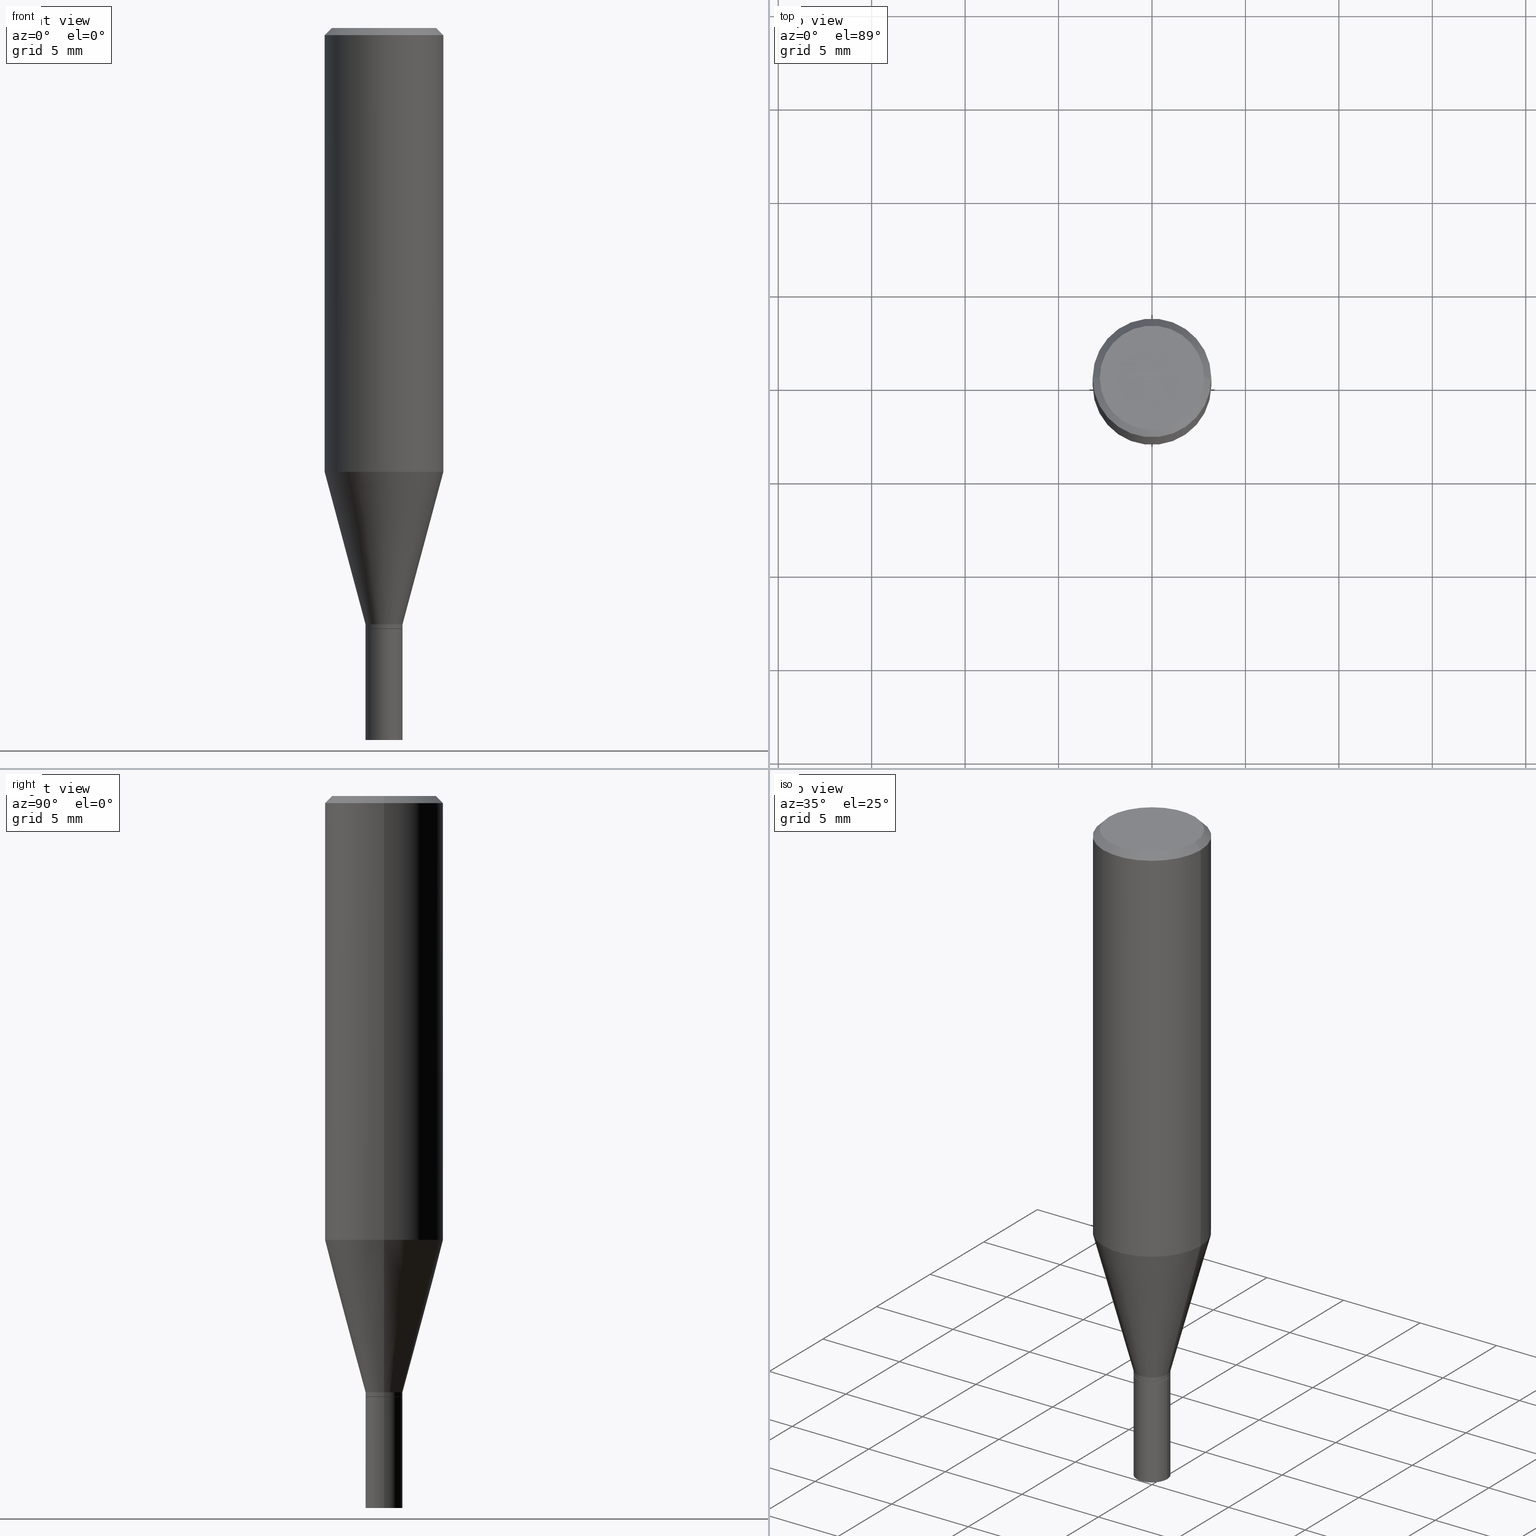
[diagram: canonical four-view strip — front | top / right | iso, engineering-drawing reading convention]
A machine part, canonical four-view strip (front | top / right | iso — engineering-drawing reading convention). The complete STEP part file that produces these views, byte-faithful:
ISO-10303-21;
HEADER;
FILE_DESCRIPTION (( 'STEP AP203' ),
    '1' );
FILE_NAME ('05292.STEP',
    '2024-03-14T18:05:13',
    ( '' ),
    ( '' ),
    'SwSTEP 2.0',
    'SolidWorks 2023',
    '' );
FILE_SCHEMA (( 'CONFIG_CONTROL_DESIGN' ));
ENDSEC;

DATA;
#1 = DIRECTION ( 'NONE',  ( 1.000000000000000000, -6.982962677686266711E-15, 0.000000000000000000 ) ) ;
#2 = LOCAL_TIME ( 14, 5, 13.00000000000000000, #310 ) ;
#3 = ADVANCED_FACE ( 'NONE', ( #195 ), #27, .T. ) ;
#4 = APPLICATION_PROTOCOL_DEFINITION ( 'international standard', 'config_control_design', 1994, #252 ) ;
#5 = CARTESIAN_POINT ( 'NONE',  ( -0.03905000000000000138, -4.551251753305752024E-15, -1.500000000000000222 ) ) ;
#6 = DIRECTION ( 'NONE',  ( -2.445468806185136597E-29, 3.491481338843145583E-15, 1.000000000000000000 ) ) ;
#7 = MECHANICAL_CONTEXT ( 'NONE', #242, 'mechanical' ) ;
#8 = CARTESIAN_POINT ( 'NONE',  ( -0.03904999999999992505, 2.774669383143185900E-16, -1.920844152744536784E-30 ) ) ;
#9 = PERSON_AND_ORGANIZATION ( #257, #280 ) ;
#10 = VERTEX_POINT ( 'NONE', #16 ) ;
#11 = AXIS2_PLACEMENT_3D ( 'NONE', #381, #31, #238 ) ;
#12 = AXIS2_PLACEMENT_3D ( 'NONE', #102, #458, #74 ) ;
#13 = ORIENTED_EDGE ( 'NONE', *, *, #270, .F. ) ;
#14 = ORIENTED_EDGE ( 'NONE', *, *, #346, .T. ) ;
#15 = DIRECTION ( 'NONE',  ( -2.445468806185136877E-29, 3.491481338843145188E-15, 1.000000000000000000 ) ) ;
#16 = CARTESIAN_POINT ( 'NONE',  ( -0.03904999999999992505, -3.242497054963153757E-15, -1.256000000000000227 ) ) ;
#17 = LINE ( 'NONE', #225, #313 ) ;
#18 = ORIENTED_EDGE ( 'NONE', *, *, #276, .T. ) ;
#19 = DIRECTION ( 'NONE',  ( -2.445468806185136597E-29, 3.491481338843145583E-15, 1.000000000000000000 ) ) ;
#20 = ADVANCED_FACE ( 'NONE', ( #158 ), #137, .T. ) ;
#21 = VERTEX_POINT ( 'NONE', #78 ) ;
#22 = AXIS2_PLACEMENT_3D ( 'NONE', #402, #295, #266 ) ;
#23 = AXIS2_PLACEMENT_3D ( 'NONE', #414, #90, #223 ) ;
#24 = LINE ( 'NONE', #135, #459 ) ;
#25 = VERTEX_POINT ( 'NONE', #409 ) ;
#26 = ORIENTED_EDGE ( 'NONE', *, *, #219, .T. ) ;
#27 = CONICAL_SURFACE ( 'NONE', #75, 0.03855000000000000093, 0.7853981633974739252 ) ;
#28 = PRODUCT_DEFINITION_FORMATION_WITH_SPECIFIED_SOURCE ( 'ANY', '', #447, .NOT_KNOWN. ) ;
#29 = EDGE_CURVE ( 'NONE', #292, #188, #339, .T. ) ;
#30 = PERSON_AND_ORGANIZATION_ROLE ( 'design_supplier' ) ;
#31 = DIRECTION ( 'NONE',  ( -2.445468806185136597E-29, 3.491481338843145583E-15, 1.000000000000000000 ) ) ;
#32 = FACE_OUTER_BOUND ( 'NONE', #331, .T. ) ;
#33 = EDGE_CURVE ( 'NONE', #37, #307, #115, .T. ) ;
#34 = ORIENTED_EDGE ( 'NONE', *, *, #453, .T. ) ;
#35 = AXIS2_PLACEMENT_3D ( 'NONE', #431, #108, #325 ) ;
#36 = DIRECTION ( 'NONE',  ( -2.445468806185136877E-29, 3.491481338843145188E-15, 1.000000000000000000 ) ) ;
#37 = VERTEX_POINT ( 'NONE', #93 ) ;
#38 = LINE ( 'NONE', #253, #215 ) ;
#39 = ADVANCED_FACE ( 'NONE', ( #162 ), #96, .F. ) ;
#40 = PLANE ( 'NONE',  #411 ) ;
#41 = DIRECTION ( 'NONE',  ( 1.000000000000000000, -6.982962677686266711E-15, 4.876176775795935793E-29 ) ) ;
#42 = LINE ( 'NONE', #327, #53 ) ;
#43 = CIRCLE ( 'NONE', #370, 0.03904999999999992505 ) ;
#44 = CC_DESIGN_SECURITY_CLASSIFICATION ( #342, ( #28 ) ) ;
#45 = DATE_AND_TIME ( #361, #349 ) ;
#46 = DIRECTION ( 'NONE',  ( 0.7071067811865365815, -7.319954787623219758E-15, -0.7071067811865584529 ) ) ;
#47 = ORIENTED_EDGE ( 'NONE', *, *, #99, .T. ) ;
#48 = LINE ( 'NONE', #298, #401 ) ;
#49 = EDGE_CURVE ( 'NONE', #21, #120, #400, .T. ) ;
#50 = ORIENTED_EDGE ( 'NONE', *, *, #203, .T. ) ;
#51 =( NAMED_UNIT ( * ) SI_UNIT ( $, .STERADIAN. ) SOLID_ANGLE_UNIT ( ) );
#52 = CARTESIAN_POINT ( 'NONE',  ( 0.03905000000000000138, -2.726846925636487182E-16, 1.904147030948312851E-30 ) ) ;
#53 = VECTOR ( 'NONE', #291, 39.37007874015748143 ) ;
#54 = ORIENTED_EDGE ( 'NONE', *, *, #371, .F. ) ;
#55 =( CONVERSION_BASED_UNIT ( 'INCH', #227 ) LENGTH_UNIT ( ) NAMED_UNIT ( #272 ) );
#56 = VERTEX_POINT ( 'NONE', #379 ) ;
#57 = DIRECTION ( 'NONE',  ( 1.000000000000000000, -6.982962677686266711E-15, 0.000000000000000000 ) ) ;
#58 = ORIENTED_EDGE ( 'NONE', *, *, #49, .F. ) ;
#59 = EDGE_LOOP ( 'NONE', ( #187, #47, #231, #13 ) ) ;
#60 = APPROVAL_PERSON_ORGANIZATION ( #9, #245, #130 ) ;
#61 = CYLINDRICAL_SURFACE ( 'NONE', #69, 0.03904999999999992505 ) ;
#62 = FACE_OUTER_BOUND ( 'NONE', #161, .T. ) ;
#63 = CARTESIAN_POINT ( 'NONE',  ( 0.000000000000000000, 0.000000000000000000, 0.000000000000000000 ) ) ;
#64 = AXIS2_PLACEMENT_3D ( 'NONE', #324, #460, #248 ) ;
#65 = CARTESIAN_POINT ( 'NONE',  ( -0.03855000000000000093, -4.146301150339903732E-15, -1.266000000000000014 ) ) ;
#66 = DIRECTION ( 'NONE',  ( -2.445468806185136597E-29, 3.491481338843145583E-15, 1.000000000000000000 ) ) ;
#67 = PERSON_AND_ORGANIZATION_ROLE ( 'classification_officer' ) ;
#68 = DIRECTION ( 'NONE',  ( -2.445468806185136597E-29, 3.491481338843145583E-15, 1.000000000000000000 ) ) ;
#69 = AXIS2_PLACEMENT_3D ( 'NONE', #418, #209, #97 ) ;
#70 = DIRECTION ( 'NONE',  ( -0.7071067811865365815, 2.468850131082142676E-15, -0.7071067811865584529 ) ) ;
#71 = ADVANCED_FACE ( 'NONE', ( #62 ), #456, .F. ) ;
#72 = APPROVAL ( #416, 'UNSPECIFIED' ) ;
#73 = DIRECTION ( 'NONE',  ( 2.445468806185136597E-29, -3.491481338843145583E-15, -1.000000000000000000 ) ) ;
#74 = DIRECTION ( 'NONE',  ( 1.000000000000000000, -6.982962677686254878E-15, 0.000000000000000000 ) ) ;
#75 = AXIS2_PLACEMENT_3D ( 'NONE', #89, #335, #81 ) ;
#76 = DIRECTION ( 'NONE',  ( -1.000000000000000000, 6.982962677686266711E-15, 0.000000000000000000 ) ) ;
#77 = CC_DESIGN_APPROVAL ( #124, ( #28 ) ) ;
#78 = CARTESIAN_POINT ( 'NONE',  ( -0.03905000000000000138, -4.551251753305752024E-15, -1.266000000000000014 ) ) ;
#79 = EDGE_CURVE ( 'NONE', #159, #461, #249, .T. ) ;
#80 = CALENDAR_DATE ( 2024, 14, 3 ) ;
#81 = DIRECTION ( 'NONE',  ( 1.000000000000000000, -6.982962677686253300E-15, 0.000000000000000000 ) ) ;
#82 = ORIENTED_EDGE ( 'NONE', *, *, #383, .F. ) ;
#83 =( LENGTH_UNIT ( ) NAMED_UNIT ( * ) SI_UNIT ( $, .METRE. ) );
#84 = APPROVAL_PERSON_ORGANIZATION ( #271, #124, #110 ) ;
#85 = CARTESIAN_POINT ( 'NONE',  ( 3.094740774227290865E-29, -4.418469634306001449E-15, -1.265500000000000291 ) ) ;
#86 = ADVANCED_FACE ( 'NONE', ( #201 ), #354, .T. ) ;
#87 = EDGE_CURVE ( 'NONE', #25, #229, #24, .T. ) ;
#88 = CARTESIAN_POINT ( 'NONE',  ( 0.000000000000000000, 0.000000000000000000, 0.000000000000000000 ) ) ;
#89 = CARTESIAN_POINT ( 'NONE',  ( 3.095963508630383106E-29, -4.420215374975422163E-15, -1.266000000000000014 ) ) ;
#90 = DIRECTION ( 'NONE',  ( 0.000000000000000000, 0.000000000000000000, 1.000000000000000000 ) ) ;
#91 = FACE_OUTER_BOUND ( 'NONE', #353, .T. ) ;
#92 = APPLICATION_PROTOCOL_DEFINITION ( 'international standard', 'config_control_design', 1994, #242 ) ;
#93 = CARTESIAN_POINT ( 'NONE',  ( 0.03855000000000000093, -4.689408586200227480E-15, -1.266000000000000014 ) ) ;
#94 = AXIS2_PLACEMENT_3D ( 'NONE', #439, #278, #274 ) ;
#95 = CC_DESIGN_APPROVAL ( #245, ( #173 ) ) ;
#96 = PLANE ( 'NONE',  #375 ) ;
#97 = DIRECTION ( 'NONE',  ( 1.000000000000000000, -6.982962677686265922E-15, 4.876176775795935793E-29 ) ) ;
#98 = DIRECTION ( 'NONE',  ( 0.2588190451025213501, 1.565188264969621968E-15, 0.9659258262890682012 ) ) ;
#99 = EDGE_CURVE ( 'NONE', #307, #37, #133, .T. ) ;
#100 = LINE ( 'NONE', #387, #403 ) ;
#101 = DIRECTION ( 'NONE',  ( -1.000000000000000000, 6.982962677686265922E-15, -4.876176775795935793E-29 ) ) ;
#102 = CARTESIAN_POINT ( 'NONE',  ( 3.094740774227290865E-29, -4.418469634306001449E-15, -1.265500000000000291 ) ) ;
#103 = ORIENTED_EDGE ( 'NONE', *, *, #317, .T. ) ;
#104 = AXIS2_PLACEMENT_3D ( 'NONE', #63, #449, #131 ) ;
#105 = CIRCLE ( 'NONE', #12, 0.03904999999999992505 ) ;
#106 = LINE ( 'NONE', #8, #164 ) ;
#107 = EDGE_CURVE ( 'NONE', #307, #188, #386, .T. ) ;
#108 = DIRECTION ( 'NONE',  ( -2.445468806185136597E-29, 3.491481338843145583E-15, 1.000000000000000000 ) ) ;
#109 = CARTESIAN_POINT ( 'NONE',  ( 0.000000000000000000, 0.000000000000000000, 0.000000000000000000 ) ) ;
#110 = APPROVAL_ROLE ( '' ) ;
#111 = ORIENTED_EDGE ( 'NONE', *, *, #317, .F. ) ;
#112 = CARTESIAN_POINT ( 'NONE',  ( 3.668203209277705088E-31, -5.237222008264718399E-17, -0.01499999999999999944 ) ) ;
#113 = ORIENTED_EDGE ( 'NONE', *, *, #281, .F. ) ;
#114 = ADVANCED_FACE ( 'NONE', ( #91 ), #61, .T. ) ;
#115 = CIRCLE ( 'NONE', #94, 0.03855000000000000093 ) ;
#116 = CONICAL_SURFACE ( 'NONE', #452, 0.1250000000000000000, 0.7853981633974328469 ) ;
#117 = FACE_OUTER_BOUND ( 'NONE', #436, .T. ) ;
#118 = PERSON_AND_ORGANIZATION_ROLE ( 'design_owner' ) ;
#119 = EDGE_LOOP ( 'NONE', ( #442, #230, #172, #464 ) ) ;
#120 = VERTEX_POINT ( 'NONE', #351 ) ;
#121 = ORIENTED_EDGE ( 'NONE', *, *, #281, .T. ) ;
#122 = CARTESIAN_POINT ( 'NONE',  ( 3.095963508630383106E-29, -4.420215374975422163E-15, -1.266000000000000014 ) ) ;
#123 = ADVANCED_FACE ( 'NONE', ( #382 ), #345, .T. ) ;
#124 = APPROVAL ( #233, 'UNSPECIFIED' ) ;
#125 = ORIENTED_EDGE ( 'NONE', *, *, #346, .F. ) ;
#126 = ORIENTED_EDGE ( 'NONE', *, *, #305, .T. ) ;
#127 = DIRECTION ( 'NONE',  ( -2.445468806185136877E-29, 3.491481338843145188E-15, 1.000000000000000000 ) ) ;
#128 = VERTEX_POINT ( 'NONE', #163 ) ;
#129 = CARTESIAN_POINT ( 'NONE',  ( 3.071508820568532122E-29, -4.385300561586992092E-15, -1.256000000000000227 ) ) ;
#130 = APPROVAL_ROLE ( '' ) ;
#131 = DIRECTION ( 'NONE',  ( 1.000000000000000000, -6.982962677686266711E-15, 4.876176775795935793E-29 ) ) ;
#132 = EDGE_CURVE ( 'NONE', #362, #229, #312, .T. ) ;
#133 = CIRCLE ( 'NONE', #153, 0.03855000000000000093 ) ;
#134 = LOCAL_TIME ( 14, 5, 13.00000000000000000, #377 ) ;
#135 = CARTESIAN_POINT ( 'NONE',  ( 0.03904999999999992505, -4.657985254150639627E-15, -1.256000000000000227 ) ) ;
#136 = CARTESIAN_POINT ( 'NONE',  ( 0.1100000000000000006, -8.322946247794777961E-16, 4.589658644116375565E-16 ) ) ;
#137 = CONICAL_SURFACE ( 'NONE', #22, 0.03855000000000000093, 0.7853981633974739252 ) ;
#138 = AXIS2_PLACEMENT_3D ( 'NONE', #156, #6, #261 ) ;
#139 = APPROVAL_PERSON_ORGANIZATION ( #455, #72, #388 ) ;
#140 = DIRECTION ( 'NONE',  ( -1.000000000000000000, 6.982962677686266711E-15, 0.000000000000000000 ) ) ;
#141 = PLANE ( 'NONE',  #376 ) ;
#142 = VERTEX_POINT ( 'NONE', #136 ) ;
#143 = DIRECTION ( 'NONE',  ( -2.445468806185136597E-29, 3.491481338843145583E-15, 1.000000000000000000 ) ) ;
#144 = CARTESIAN_POINT ( 'NONE',  ( 0.000000000000000000, 0.000000000000000000, 0.000000000000000000 ) ) ;
#145 = AXIS2_PLACEMENT_3D ( 'NONE', #246, #73, #140 ) ;
#146 = AXIS2_PLACEMENT_3D ( 'NONE', #412, #148, #302 ) ;
#147 = FACE_OUTER_BOUND ( 'NONE', #226, .T. ) ;
#148 = DIRECTION ( 'NONE',  ( -2.445468806185136597E-29, 3.491481338843145583E-15, 1.000000000000000000 ) ) ;
#149 = PERSON_AND_ORGANIZATION ( #257, #280 ) ;
#150 = ADVANCED_FACE ( 'NONE', ( #147 ), #288, .T. ) ;
#151 = CYLINDRICAL_SURFACE ( 'NONE', #385, 0.03904999999999992505 ) ;
#152 = DIRECTION ( 'NONE',  ( 1.000000000000000000, -6.982962677686254878E-15, 0.000000000000000000 ) ) ;
#153 = AXIS2_PLACEMENT_3D ( 'NONE', #240, #277, #309 ) ;
#154 = LINE ( 'NONE', #52, #250 ) ;
#155 = VERTEX_POINT ( 'NONE', #283 ) ;
#156 = CARTESIAN_POINT ( 'NONE',  ( 3.668203209277705088E-31, -5.237222008264718399E-17, -0.01499999999999999944 ) ) ;
#157 = ORIENTED_EDGE ( 'NONE', *, *, #364, .T. ) ;
#158 = FACE_OUTER_BOUND ( 'NONE', #59, .T. ) ;
#159 = VERTEX_POINT ( 'NONE', #217 ) ;
#160 = CIRCLE ( 'NONE', #146, 0.1100000000000000006 ) ;
#161 = EDGE_LOOP ( 'NONE', ( #157, #18 ) ) ;
#162 = FACE_OUTER_BOUND ( 'NONE', #191, .T. ) ;
#163 = CARTESIAN_POINT ( 'NONE',  ( -0.1100000000000000006, 7.943120045868136075E-16, 4.589658644116265124E-16 ) ) ;
#164 = VECTOR ( 'NONE', #127, 39.37007874015748143 ) ;
#165 = ADVANCED_FACE ( 'NONE', ( #424 ), #40, .F. ) ;
#166 = CARTESIAN_POINT ( 'NONE',  ( 0.1250000000000000000, -8.728703347107833388E-16, 6.095220969744919741E-30 ) ) ;
#167 = MANIFOLD_SOLID_BREP ( 'Body-Move/Copy2[1]', #189 ) ;
#168 = CARTESIAN_POINT ( 'NONE',  ( 0.1250000000000000278, -4.138209241064543323E-15, -0.9352302330894556315 ) ) ;
#169 = AXIS2_PLACEMENT_3D ( 'NONE', #318, #220, #323 ) ;
#170 = MANIFOLD_SOLID_BREP ( 'Body-Move/Copy2[2]', #341 ) ;
#171 = DIRECTION ( 'NONE',  ( -2.445468806185136877E-29, 3.491481338843145188E-15, 1.000000000000000000 ) ) ;
#172 = ORIENTED_EDGE ( 'NONE', *, *, #286, .T. ) ;
#173 = PRODUCT_DEFINITION ( 'UNKNOWN', '', #28, #359 ) ;
#174 = CARTESIAN_POINT ( 'NONE',  ( 3.095963508630383106E-29, -4.420215374975422163E-15, -1.266000000000000014 ) ) ;
#175 = PRODUCT_RELATED_PRODUCT_CATEGORY ( 'detail', '', ( #447 ) ) ;
#176 = DIRECTION ( 'NONE',  ( 1.000000000000000000, -6.982962677686266711E-15, 4.876176775795935232E-29 ) ) ;
#177 = ORIENTED_EDGE ( 'NONE', *, *, #350, .T. ) ;
#178 = UNCERTAINTY_MEASURE_WITH_UNIT (LENGTH_MEASURE( 1.000000000000000082E-05 ), #55, 'distance_accuracy_value', 'NONE');
#179 = CIRCLE ( 'NONE', #169, 0.1100000000000000006 ) ;
#180 = CARTESIAN_POINT ( 'NONE',  ( 3.071508820568532122E-29, -4.385300561586992092E-15, -1.256000000000000227 ) ) ;
#181 = ADVANCED_FACE ( 'NONE', ( #251 ), #199, .T. ) ;
#182 = APPROVAL_DATE_TIME ( #45, #124 ) ;
#183 = FACE_OUTER_BOUND ( 'NONE', #255, .T. ) ;
#184 = EDGE_LOOP ( 'NONE', ( #372, #367, #113, #239 ) ) ;
#185 = CARTESIAN_POINT ( 'NONE',  ( 0.000000000000000000, 0.000000000000000000, 0.000000000000000000 ) ) ;
#186 = DATE_AND_TIME ( #80, #296 ) ;
#187 = ORIENTED_EDGE ( 'NONE', *, *, #107, .F. ) ;
#188 = VERTEX_POINT ( 'NONE', #316 ) ;
#189 = CLOSED_SHELL ( 'NONE', ( #198, #39, #425, #165 ) ) ;
#190 = AXIS2_PLACEMENT_3D ( 'NONE', #144, #293, #41 ) ;
#191 = EDGE_LOOP ( 'NONE', ( #338, #196 ) ) ;
#192 =( NAMED_UNIT ( * ) PLANE_ANGLE_UNIT ( ) SI_UNIT ( $, .RADIAN. ) );
#193 = ORIENTED_EDGE ( 'NONE', *, *, #398, .T. ) ;
#194 = DIRECTION ( 'NONE',  ( -2.445468806185136597E-29, 3.491481338843145583E-15, 1.000000000000000000 ) ) ;
#195 = FACE_OUTER_BOUND ( 'NONE', #373, .T. ) ;
#196 = ORIENTED_EDGE ( 'NONE', *, *, #453, .F. ) ;
#197 = AXIS2_PLACEMENT_3D ( 'NONE', #85, #224, #152 ) ;
#198 = ADVANCED_FACE ( 'NONE', ( #395 ), #322, .T. ) ;
#199 = CONICAL_SURFACE ( 'NONE', #319, 0.03904999999999992505, 0.2617993877991500740 ) ;
#200 = DIRECTION ( 'NONE',  ( -1.000000000000000000, 6.982962677686265922E-15, -4.876176775795935793E-29 ) ) ;
#201 = FACE_OUTER_BOUND ( 'NONE', #405, .T. ) ;
#202 = DIRECTION ( 'NONE',  ( 1.000000000000000000, -6.982962677686266711E-15, 0.000000000000000000 ) ) ;
#203 = EDGE_CURVE ( 'NONE', #229, #56, #357, .T. ) ;
#204 = ADVANCED_FACE ( 'NONE', ( #32 ), #141, .F. ) ;
#205 = DIRECTION ( 'NONE',  ( -2.445468806185136597E-29, 3.491481338843145583E-15, 1.000000000000000000 ) ) ;
#206 = AXIS2_PLACEMENT_3D ( 'NONE', #129, #205, #347 ) ;
#207 = LOCAL_TIME ( 14, 5, 13.00000000000000000, #457 ) ;
#208 = DATE_TIME_ROLE ( 'classification_date' ) ;
#209 = DIRECTION ( 'NONE',  ( -2.445468806185136597E-29, 3.491481338843145583E-15, 1.000000000000000000 ) ) ;
#210 = SHAPE_DEFINITION_REPRESENTATION ( #300, #340 ) ;
#211 = DIRECTION ( 'NONE',  ( 1.000000000000000000, -6.982962677686266711E-15, 0.000000000000000000 ) ) ;
#212 = ORIENTED_EDGE ( 'NONE', *, *, #29, .T. ) ;
#213 = DIRECTION ( 'NONE',  ( 1.000000000000000000, -6.982962677686254878E-15, 0.000000000000000000 ) ) ;
#214 = CC_DESIGN_PERSON_AND_ORGANIZATION_ASSIGNMENT ( #423, #67, ( #342 ) ) ;
#215 = VECTOR ( 'NONE', #171, 39.37007874015748143 ) ;
#216 = CARTESIAN_POINT ( 'NONE',  ( -0.03904999999999992505, -4.107833623272672762E-15, -1.256000000000000227 ) ) ;
#217 = CARTESIAN_POINT ( 'NONE',  ( 0.03905000000000000138, -5.509906700828367289E-15, -1.500000000000000222 ) ) ;
#218 = EDGE_CURVE ( 'NONE', #10, #362, #285, .T. ) ;
#219 = EDGE_CURVE ( 'NONE', #292, #25, #38, .T. ) ;
#220 = DIRECTION ( 'NONE',  ( -2.445468806185136597E-29, 3.491481338843145583E-15, 1.000000000000000000 ) ) ;
#221 =( GEOMETRIC_REPRESENTATION_CONTEXT ( 3 ) GLOBAL_UNCERTAINTY_ASSIGNED_CONTEXT ( ( #178 ) ) GLOBAL_UNIT_ASSIGNED_CONTEXT ( ( #55, #192, #51 ) ) REPRESENTATION_CONTEXT ( 'NONE', 'WORKASPACE' ) );
#222 = CYLINDRICAL_SURFACE ( 'NONE', #430, 0.03905000000000000138 ) ;
#223 = DIRECTION ( 'NONE',  ( 1.000000000000000000, 0.000000000000000000, 0.000000000000000000 ) ) ;
#224 = DIRECTION ( 'NONE',  ( -2.445468806185136597E-29, 3.491481338843145583E-15, 1.000000000000000000 ) ) ;
#225 = CARTESIAN_POINT ( 'NONE',  ( 0.03855000000000000093, -4.689408586200227480E-15, -1.266000000000000014 ) ) ;
#226 = EDGE_LOOP ( 'NONE', ( #82, #369, #366, #177 ) ) ;
#227 = LENGTH_MEASURE_WITH_UNIT ( LENGTH_MEASURE( 0.02539999999999999897 ), #83 );
#228 = ORIENTED_EDGE ( 'NONE', *, *, #33, .F. ) ;
#229 = VERTEX_POINT ( 'NONE', #168 ) ;
#230 = ORIENTED_EDGE ( 'NONE', *, *, #383, .T. ) ;
#231 = ORIENTED_EDGE ( 'NONE', *, *, #397, .T. ) ;
#232 = ORIENTED_EDGE ( 'NONE', *, *, #270, .T. ) ;
#233 = APPROVAL_STATUS ( 'not_yet_approved' ) ;
#234 = APPROVAL_DATE_TIME ( #186, #245 ) ;
#235 = CIRCLE ( 'NONE', #138, 0.1250000000000000000 ) ;
#236 = CC_DESIGN_APPROVAL ( #72, ( #342 ) ) ;
#237 = DIRECTION ( 'NONE',  ( -2.438088387897960049E-29, 3.491481338843145188E-15, 1.000000000000000000 ) ) ;
#238 = DIRECTION ( 'NONE',  ( 1.000000000000000000, -6.982962677686266711E-15, 0.000000000000000000 ) ) ;
#239 = ORIENTED_EDGE ( 'NONE', *, *, #87, .F. ) ;
#240 = CARTESIAN_POINT ( 'NONE',  ( 3.095963508630383106E-29, -4.420215374975422163E-15, -1.266000000000000014 ) ) ;
#241 = CIRCLE ( 'NONE', #260, 0.1250000000000000000 ) ;
#242 = APPLICATION_CONTEXT ( 'configuration controlled 3d designs of mechanical parts and assemblies' ) ;
#243 = DIRECTION ( 'NONE',  ( -2.445468806185136877E-29, 3.491481338843145188E-15, 1.000000000000000000 ) ) ;
#244 = DATE_AND_TIME ( #420, #207 ) ;
#245 = APPROVAL ( #262, 'UNSPECIFIED' ) ;
#246 = CARTESIAN_POINT ( 'NONE',  ( 3.668203209277705088E-31, -5.237222008264718399E-17, -0.01499999999999999944 ) ) ;
#247 = FACE_OUTER_BOUND ( 'NONE', #259, .T. ) ;
#248 = DIRECTION ( 'NONE',  ( 1.000000000000000000, -6.982962677686266711E-15, 0.000000000000000000 ) ) ;
#249 = CIRCLE ( 'NONE', #334, 0.03905000000000000138 ) ;
#250 = VECTOR ( 'NONE', #15, 39.37007874015748143 ) ;
#251 = FACE_OUTER_BOUND ( 'NONE', #184, .T. ) ;
#252 = APPLICATION_CONTEXT ( 'configuration controlled 3d designs of mechanical parts and assemblies' ) ;
#253 = CARTESIAN_POINT ( 'NONE',  ( 0.03904999999999992505, -2.726846925636481759E-16, 1.904147030948309348E-30 ) ) ;
#254 = PERSON_AND_ORGANIZATION_ROLE ( 'creator' ) ;
#255 = EDGE_LOOP ( 'NONE', ( #111, #232, #26, #408 ) ) ;
#256 = CYLINDRICAL_SURFACE ( 'NONE', #190, 0.1250000000000000000 ) ;
#257 = PERSON ( 'UNSPECIFIED', 'UNSPECIFIED', 'UNSPECIFIED', ('UNSPECIFIED'), ('UNSPECIFIED'), ('UNSPECIFIED') ) ;
#258 = DIRECTION ( 'NONE',  ( 0.7071067811865656694, -2.468850131082446387E-15, 0.7071067811865294761 ) ) ;
#259 = EDGE_LOOP ( 'NONE', ( #121, #333, #284, #265 ) ) ;
#260 = AXIS2_PLACEMENT_3D ( 'NONE', #360, #390, #1 ) ;
#261 = DIRECTION ( 'NONE',  ( 1.000000000000000000, -6.982962677686266711E-15, 0.000000000000000000 ) ) ;
#262 = APPROVAL_STATUS ( 'not_yet_approved' ) ;
#263 = ORIENTED_EDGE ( 'NONE', *, *, #350, .F. ) ;
#264 = EDGE_CURVE ( 'NONE', #362, #155, #358, .T. ) ;
#265 = ORIENTED_EDGE ( 'NONE', *, *, #203, .F. ) ;
#266 = DIRECTION ( 'NONE',  ( 1.000000000000000000, -6.982962677686253300E-15, 0.000000000000000000 ) ) ;
#267 = VECTOR ( 'NONE', #393, 39.37007874015747433 ) ;
#268 = CARTESIAN_POINT ( 'NONE',  ( -0.1250000000000000278, -2.377160486653634357E-15, -0.9352302330894556315 ) ) ;
#269 = ORIENTED_EDGE ( 'NONE', *, *, #132, .F. ) ;
#270 = EDGE_CURVE ( 'NONE', #188, #292, #105, .T. ) ;
#271 = PERSON_AND_ORGANIZATION ( #257, #280 ) ;
#272 = DIMENSIONAL_EXPONENTS ( 1.000000000000000000, 0.000000000000000000, 0.000000000000000000, 0.000000000000000000, 0.000000000000000000, 0.000000000000000000, 0.000000000000000000 ) ;
#273 = AXIS2_PLACEMENT_3D ( 'NONE', #122, #329, #57 ) ;
#274 = DIRECTION ( 'NONE',  ( 1.000000000000000000, -6.982962677686253300E-15, 0.000000000000000000 ) ) ;
#275 = PERSON_AND_ORGANIZATION_ROLE ( 'creator' ) ;
#276 = EDGE_CURVE ( 'NONE', #142, #128, #179, .T. ) ;
#277 = DIRECTION ( 'NONE',  ( -2.445468806185136597E-29, 3.491481338843145583E-15, 1.000000000000000000 ) ) ;
#278 = DIRECTION ( 'NONE',  ( -2.445468806185136597E-29, 3.491481338843145583E-15, 1.000000000000000000 ) ) ;
#279 = CARTESIAN_POINT ( 'NONE',  ( 0.03904999999999992505, -4.691154326869648983E-15, -1.265500000000000291 ) ) ;
#280 = ORGANIZATION ( 'UNSPECIFIED', 'UNSPECIFIED', '' ) ;
#281 = EDGE_CURVE ( 'NONE', #229, #362, #438, .T. ) ;
#282 = PERSON_AND_ORGANIZATION ( #257, #280 ) ;
#283 = CARTESIAN_POINT ( 'NONE',  ( -0.1250000000000000000, -7.706771435180783978E-16, -0.01499999999999999944 ) ) ;
#284 = ORIENTED_EDGE ( 'NONE', *, *, #286, .F. ) ;
#285 = LINE ( 'NONE', #216, #267 ) ;
#286 = EDGE_CURVE ( 'NONE', #56, #155, #241, .T. ) ;
#287 = DIRECTION ( 'NONE',  ( 1.000000000000000000, -6.982962677686254878E-15, 0.000000000000000000 ) ) ;
#288 = CONICAL_SURFACE ( 'NONE', #145, 0.1250000000000000000, 0.7853981633974328469 ) ;
#289 = CIRCLE ( 'NONE', #421, 0.03904999999999992505 ) ;
#290 = DIRECTION ( 'NONE',  ( 2.438088387897960049E-29, -3.491481338843145188E-15, -1.000000000000000000 ) ) ;
#291 = DIRECTION ( 'NONE',  ( -2.445468806185136877E-29, 3.491481338843145188E-15, 1.000000000000000000 ) ) ;
#292 = VERTEX_POINT ( 'NONE', #279 ) ;
#293 = DIRECTION ( 'NONE',  ( -2.445468806185136597E-29, 3.491481338843145583E-15, 1.000000000000000000 ) ) ;
#294 = DIRECTION ( 'NONE',  ( -2.445468806185136597E-29, 3.491481338843145583E-15, 1.000000000000000000 ) ) ;
#295 = DIRECTION ( 'NONE',  ( -2.445468806185136597E-29, 3.491481338843145583E-15, 1.000000000000000000 ) ) ;
#296 = LOCAL_TIME ( 14, 5, 13.00000000000000000, #404 ) ;
#297 = CC_DESIGN_DATE_AND_TIME_ASSIGNMENT ( #446, #434, ( #173 ) ) ;
#298 = CARTESIAN_POINT ( 'NONE',  ( 0.1250000000000000000, -9.099344698040885245E-16, -0.01499999999999999944 ) ) ;
#299 = ORIENTED_EDGE ( 'NONE', *, *, #29, .F. ) ;
#300 = PRODUCT_DEFINITION_SHAPE ( 'NONE', 'NONE',  #173 ) ;
#301 = ORIENTED_EDGE ( 'NONE', *, *, #107, .T. ) ;
#302 = DIRECTION ( 'NONE',  ( 1.000000000000000000, -6.982962677686266711E-15, 4.852736867747365646E-29 ) ) ;
#303 = ORIENTED_EDGE ( 'NONE', *, *, #332, .T. ) ;
#304 = EDGE_CURVE ( 'NONE', #128, #155, #100, .T. ) ;
#305 = EDGE_CURVE ( 'NONE', #10, #25, #43, .T. ) ;
#306 = ORIENTED_EDGE ( 'NONE', *, *, #132, .T. ) ;
#307 = VERTEX_POINT ( 'NONE', #429 ) ;
#308 = CALENDAR_DATE ( 2024, 14, 3 ) ;
#309 = DIRECTION ( 'NONE',  ( 1.000000000000000000, -6.982962677686253300E-15, 0.000000000000000000 ) ) ;
#310 = COORDINATED_UNIVERSAL_TIME_OFFSET ( 5, 0, .BEHIND. ) ;
#311 = EDGE_LOOP ( 'NONE', ( #320, #193, #125, #413 ) ) ;
#312 = CIRCLE ( 'NONE', #348, 0.1250000000000000000 ) ;
#313 = VECTOR ( 'NONE', #258, 39.37007874015748143 ) ;
#314 = PERSON_AND_ORGANIZATION ( #257, #280 ) ;
#315 = CARTESIAN_POINT ( 'NONE',  ( 7.681258945454893776E-16, 0.1100000000000000006, -1.545800150669300521E-16 ) ) ;
#316 = CARTESIAN_POINT ( 'NONE',  ( -0.03904999999999992505, -4.141002695991682908E-15, -1.265500000000000291 ) ) ;
#317 = EDGE_CURVE ( 'NONE', #188, #10, #106, .T. ) ;
#318 = CARTESIAN_POINT ( 'NONE',  ( -1.122386704522442906E-44, 1.602470750759226619E-30, 4.589658644116320345E-16 ) ) ;
#319 = AXIS2_PLACEMENT_3D ( 'NONE', #432, #68, #213 ) ;
#320 = ORIENTED_EDGE ( 'NONE', *, *, #79, .T. ) ;
#321 = ORIENTED_EDGE ( 'NONE', *, *, #218, .F. ) ;
#322 = CYLINDRICAL_SURFACE ( 'NONE', #444, 0.03905000000000000138 ) ;
#323 = DIRECTION ( 'NONE',  ( 1.000000000000000000, -6.982962677686266711E-15, 4.852736867747365646E-29 ) ) ;
#324 = CARTESIAN_POINT ( 'NONE',  ( 2.287076361621518071E-29, -3.265338906353759984E-15, -0.9352302330894556315 ) ) ;
#325 = DIRECTION ( 'NONE',  ( 1.000000000000000000, -6.982962677686266711E-15, 0.000000000000000000 ) ) ;
#326 = CIRCLE ( 'NONE', #273, 0.03905000000000000138 ) ;
#327 = CARTESIAN_POINT ( 'NONE',  ( -0.03905000000000000138, 2.774669383143191324E-16, -1.920844152744540637E-30 ) ) ;
#328 = ORIENTED_EDGE ( 'NONE', *, *, #398, .F. ) ;
#329 = DIRECTION ( 'NONE',  ( -2.445468806185136597E-29, 3.491481338843145583E-15, 1.000000000000000000 ) ) ;
#330 = PERSON_AND_ORGANIZATION ( #257, #280 ) ;
#331 = EDGE_LOOP ( 'NONE', ( #228, #466 ) ) ;
#332 = EDGE_CURVE ( 'NONE', #159, #120, #154, .T. ) ;
#333 = ORIENTED_EDGE ( 'NONE', *, *, #264, .T. ) ;
#334 = AXIS2_PLACEMENT_3D ( 'NONE', #419, #451, #202 ) ;
#335 = DIRECTION ( 'NONE',  ( -2.445468806185136597E-29, 3.491481338843145583E-15, 1.000000000000000000 ) ) ;
#336 = DIRECTION ( 'NONE',  ( 1.000000000000000000, -6.982962677686254878E-15, 0.000000000000000000 ) ) ;
#337 = ORIENTED_EDGE ( 'NONE', *, *, #33, .T. ) ;
#338 = ORIENTED_EDGE ( 'NONE', *, *, #79, .F. ) ;
#339 = CIRCLE ( 'NONE', #197, 0.03904999999999992505 ) ;
#340 = ADVANCED_BREP_SHAPE_REPRESENTATION ( '05292', ( #167, #170, #23 ), #221 ) ;
#341 = CLOSED_SHELL ( 'NONE', ( #114, #3, #407, #433, #181, #86, #123, #150, #71, #204, #20, #384 ) ) ;
#342 = SECURITY_CLASSIFICATION ( '', '', #380 ) ;
#343 = DIRECTION ( 'NONE',  ( -0.7071067811865656694, 7.493145998870420424E-15, 0.7071067811865294761 ) ) ;
#344 = CALENDAR_DATE ( 2024, 14, 3 ) ;
#345 = CYLINDRICAL_SURFACE ( 'NONE', #104, 0.1250000000000000000 ) ;
#346 = EDGE_CURVE ( 'NONE', #120, #21, #326, .T. ) ;
#347 = DIRECTION ( 'NONE',  ( 1.000000000000000000, -6.982962677686254878E-15, 0.000000000000000000 ) ) ;
#348 = AXIS2_PLACEMENT_3D ( 'NONE', #389, #352, #211 ) ;
#349 = LOCAL_TIME ( 14, 5, 13.00000000000000000, #396 ) ;
#350 = EDGE_CURVE ( 'NONE', #155, #56, #235, .T. ) ;
#351 = CARTESIAN_POINT ( 'NONE',  ( 0.03905000000000000138, -4.692900067539071276E-15, -1.266000000000000014 ) ) ;
#352 = DIRECTION ( 'NONE',  ( -2.445468806185136597E-29, 3.491481338843145583E-15, 1.000000000000000000 ) ) ;
#353 = EDGE_LOOP ( 'NONE', ( #212, #103, #54, #441 ) ) ;
#354 = CONICAL_SURFACE ( 'NONE', #206, 0.03904999999999992505, 0.2617993877991500740 ) ;
#355 = DIRECTION ( 'NONE',  ( -2.438088387897960049E-29, 3.491481338843145188E-15, 1.000000000000000000 ) ) ;
#356 = CIRCLE ( 'NONE', #35, 0.03905000000000000138 ) ;
#357 = LINE ( 'NONE', #166, #391 ) ;
#358 = LINE ( 'NONE', #427, #363 ) ;
#359 = DESIGN_CONTEXT ( 'detailed design', #252, 'design' ) ;
#360 = CARTESIAN_POINT ( 'NONE',  ( 3.668203209277705088E-31, -5.237222008264718399E-17, -0.01499999999999999944 ) ) ;
#361 = CALENDAR_DATE ( 2024, 14, 3 ) ;
#362 = VERTEX_POINT ( 'NONE', #268 ) ;
#363 = VECTOR ( 'NONE', #243, 39.37007874015748143 ) ;
#364 = EDGE_CURVE ( 'NONE', #128, #142, #160, .T. ) ;
#365 = DIRECTION ( 'NONE',  ( 1.000000000000000000, -6.982962677686265922E-15, 4.876176775795935793E-29 ) ) ;
#366 = ORIENTED_EDGE ( 'NONE', *, *, #304, .T. ) ;
#367 = ORIENTED_EDGE ( 'NONE', *, *, #218, .T. ) ;
#368 = ORIENTED_EDGE ( 'NONE', *, *, #49, .T. ) ;
#369 = ORIENTED_EDGE ( 'NONE', *, *, #364, .F. ) ;
#370 = AXIS2_PLACEMENT_3D ( 'NONE', #465, #143, #287 ) ;
#371 = EDGE_CURVE ( 'NONE', #25, #10, #289, .T. ) ;
#372 = ORIENTED_EDGE ( 'NONE', *, *, #371, .T. ) ;
#373 = EDGE_LOOP ( 'NONE', ( #337, #301, #299, #445 ) ) ;
#374 = DIRECTION ( 'NONE',  ( 2.438088387897960049E-29, -3.491481338843145188E-15, -1.000000000000000000 ) ) ;
#375 = AXIS2_PLACEMENT_3D ( 'NONE', #454, #237, #415 ) ;
#376 = AXIS2_PLACEMENT_3D ( 'NONE', #174, #355, #463 ) ;
#377 = COORDINATED_UNIVERSAL_TIME_OFFSET ( 5, 0, .BEHIND. ) ;
#378 = CC_DESIGN_PERSON_AND_ORGANIZATION_ASSIGNMENT ( #149, #254, ( #173 ) ) ;
#379 = CARTESIAN_POINT ( 'NONE',  ( 0.1250000000000000000, -9.252425547934304180E-16, -0.01499999999999999944 ) ) ;
#380 = SECURITY_CLASSIFICATION_LEVEL ( 'unclassified' ) ;
#381 = CARTESIAN_POINT ( 'NONE',  ( 3.095963508630383106E-29, -4.420215374975422163E-15, -1.266000000000000014 ) ) ;
#382 = FACE_OUTER_BOUND ( 'NONE', #443, .T. ) ;
#383 = EDGE_CURVE ( 'NONE', #142, #56, #48, .T. ) ;
#384 = ADVANCED_FACE ( 'NONE', ( #183 ), #151, .T. ) ;
#385 = AXIS2_PLACEMENT_3D ( 'NONE', #88, #294, #365 ) ;
#386 = LINE ( 'NONE', #65, #428 ) ;
#387 = CARTESIAN_POINT ( 'NONE',  ( -0.1250000000000000000, 8.204981146281362596E-16, -0.01499999999999999944 ) ) ;
#388 = APPROVAL_ROLE ( '' ) ;
#389 = CARTESIAN_POINT ( 'NONE',  ( 2.287076361621518071E-29, -3.265338906353759984E-15, -0.9352302330894556315 ) ) ;
#390 = DIRECTION ( 'NONE',  ( -2.445468806185136597E-29, 3.491481338843145583E-15, 1.000000000000000000 ) ) ;
#391 = VECTOR ( 'NONE', #36, 39.37007874015748143 ) ;
#392 = CC_DESIGN_PERSON_AND_ORGANIZATION_ASSIGNMENT ( #314, #30, ( #28 ) ) ;
#393 = DIRECTION ( 'NONE',  ( -0.2588190451025213501, 5.211531920934551042E-15, 0.9659258262890682012 ) ) ;
#394 = ORIENTED_EDGE ( 'NONE', *, *, #87, .T. ) ;
#395 = FACE_OUTER_BOUND ( 'NONE', #311, .T. ) ;
#396 = COORDINATED_UNIVERSAL_TIME_OFFSET ( 5, 0, .BEHIND. ) ;
#397 = EDGE_CURVE ( 'NONE', #37, #292, #17, .T. ) ;
#398 = EDGE_CURVE ( 'NONE', #461, #21, #42, .T. ) ;
#399 = DIRECTION ( 'NONE',  ( 2.445468806185136597E-29, -3.491481338843145583E-15, -1.000000000000000000 ) ) ;
#400 = CIRCLE ( 'NONE', #11, 0.03905000000000000138 ) ;
#401 = VECTOR ( 'NONE', #46, 39.37007874015748143 ) ;
#402 = CARTESIAN_POINT ( 'NONE',  ( 3.095963508630383106E-29, -4.420215374975422163E-15, -1.266000000000000014 ) ) ;
#403 = VECTOR ( 'NONE', #70, 39.37007874015748143 ) ;
#404 = COORDINATED_UNIVERSAL_TIME_OFFSET ( 5, 0, .BEHIND. ) ;
#405 = EDGE_LOOP ( 'NONE', ( #321, #126, #394, #269 ) ) ;
#406 = ORIENTED_EDGE ( 'NONE', *, *, #264, .F. ) ;
#407 = ADVANCED_FACE ( 'NONE', ( #435 ), #116, .T. ) ;
#408 = ORIENTED_EDGE ( 'NONE', *, *, #305, .F. ) ;
#409 = CARTESIAN_POINT ( 'NONE',  ( 0.03904999999999992505, -4.657985254150639627E-15, -1.256000000000000227 ) ) ;
#410 = CC_DESIGN_PERSON_AND_ORGANIZATION_ASSIGNMENT ( #282, #275, ( #28 ) ) ;
#411 = AXIS2_PLACEMENT_3D ( 'NONE', #422, #290, #101 ) ;
#412 = CARTESIAN_POINT ( 'NONE',  ( -1.122386704522442906E-44, 1.602470750759226619E-30, 4.589658644116320345E-16 ) ) ;
#413 = ORIENTED_EDGE ( 'NONE', *, *, #332, .F. ) ;
#414 = CARTESIAN_POINT ( 'NONE',  ( 0.000000000000000000, 0.000000000000000000, 0.000000000000000000 ) ) ;
#415 = DIRECTION ( 'NONE',  ( 1.000000000000000000, -6.982962677686265922E-15, 4.876176775795935793E-29 ) ) ;
#416 = APPROVAL_STATUS ( 'not_yet_approved' ) ;
#417 = DATE_AND_TIME ( #344, #2 ) ;
#418 = CARTESIAN_POINT ( 'NONE',  ( 0.000000000000000000, 0.000000000000000000, 0.000000000000000000 ) ) ;
#419 = CARTESIAN_POINT ( 'NONE',  ( 3.668203209277704895E-29, -5.237222008264718177E-15, -1.500000000000000222 ) ) ;
#420 = CALENDAR_DATE ( 2024, 14, 3 ) ;
#421 = AXIS2_PLACEMENT_3D ( 'NONE', #180, #194, #336 ) ;
#422 = CARTESIAN_POINT ( 'NONE',  ( 2.726846925636796317E-16, 0.03904999999999557436, -1.266000000000000014 ) ) ;
#423 = PERSON_AND_ORGANIZATION ( #257, #280 ) ;
#424 = FACE_OUTER_BOUND ( 'NONE', #440, .T. ) ;
#425 = ADVANCED_FACE ( 'NONE', ( #117 ), #222, .T. ) ;
#426 = CC_DESIGN_DATE_AND_TIME_ASSIGNMENT ( #244, #208, ( #342 ) ) ;
#427 = CARTESIAN_POINT ( 'NONE',  ( -0.1250000000000000000, 8.881784197001252323E-16, -6.148668862818632227E-30 ) ) ;
#428 = VECTOR ( 'NONE', #343, 39.37007874015748143 ) ;
#429 = CARTESIAN_POINT ( 'NONE',  ( -0.03855000000000000093, -4.143651923165793320E-15, -1.266000000000000014 ) ) ;
#430 = AXIS2_PLACEMENT_3D ( 'NONE', #185, #19, #462 ) ;
#431 = CARTESIAN_POINT ( 'NONE',  ( 3.668203209277704895E-29, -5.237222008264718177E-15, -1.500000000000000222 ) ) ;
#432 = CARTESIAN_POINT ( 'NONE',  ( 3.071508820568532122E-29, -4.385300561586992092E-15, -1.256000000000000227 ) ) ;
#433 = ADVANCED_FACE ( 'NONE', ( #247 ), #256, .T. ) ;
#434 = DATE_TIME_ROLE ( 'creation_date' ) ;
#435 = FACE_OUTER_BOUND ( 'NONE', #119, .T. ) ;
#436 = EDGE_LOOP ( 'NONE', ( #328, #34, #303, #58 ) ) ;
#437 = AXIS2_PLACEMENT_3D ( 'NONE', #315, #374, #200 ) ;
#438 = CIRCLE ( 'NONE', #64, 0.1250000000000000000 ) ;
#439 = CARTESIAN_POINT ( 'NONE',  ( 3.095963508630383106E-29, -4.420215374975422163E-15, -1.266000000000000014 ) ) ;
#440 = EDGE_LOOP ( 'NONE', ( #14, #368 ) ) ;
#441 = ORIENTED_EDGE ( 'NONE', *, *, #219, .F. ) ;
#442 = ORIENTED_EDGE ( 'NONE', *, *, #276, .F. ) ;
#443 = EDGE_LOOP ( 'NONE', ( #406, #306, #50, #263 ) ) ;
#444 = AXIS2_PLACEMENT_3D ( 'NONE', #109, #66, #176 ) ;
#445 = ORIENTED_EDGE ( 'NONE', *, *, #397, .F. ) ;
#446 = DATE_AND_TIME ( #308, #134 ) ;
#447 = PRODUCT ( '05292', '05292', '', ( #7 ) ) ;
#448 = CC_DESIGN_PERSON_AND_ORGANIZATION_ASSIGNMENT ( #330, #118, ( #447 ) ) ;
#449 = DIRECTION ( 'NONE',  ( -2.445468806185136597E-29, 3.491481338843145583E-15, 1.000000000000000000 ) ) ;
#450 = APPROVAL_DATE_TIME ( #417, #72 ) ;
#451 = DIRECTION ( 'NONE',  ( -2.445468806185136597E-29, 3.491481338843145583E-15, 1.000000000000000000 ) ) ;
#452 = AXIS2_PLACEMENT_3D ( 'NONE', #112, #399, #76 ) ;
#453 = EDGE_CURVE ( 'NONE', #461, #159, #356, .T. ) ;
#454 = CARTESIAN_POINT ( 'NONE',  ( 3.576687321579069994E-29, -5.368277968210015545E-15, -1.500000000000000222 ) ) ;
#455 = PERSON_AND_ORGANIZATION ( #257, #280 ) ;
#456 = PLANE ( 'NONE',  #437 ) ;
#457 = COORDINATED_UNIVERSAL_TIME_OFFSET ( 5, 0, .BEHIND. ) ;
#458 = DIRECTION ( 'NONE',  ( -2.445468806185136597E-29, 3.491481338843145583E-15, 1.000000000000000000 ) ) ;
#459 = VECTOR ( 'NONE', #98, 39.37007874015747433 ) ;
#460 = DIRECTION ( 'NONE',  ( -2.445468806185136597E-29, 3.491481338843145583E-15, 1.000000000000000000 ) ) ;
#461 = VERTEX_POINT ( 'NONE', #5 ) ;
#462 = DIRECTION ( 'NONE',  ( 1.000000000000000000, -6.982962677686266711E-15, 4.876176775795935232E-29 ) ) ;
#463 = DIRECTION ( 'NONE',  ( 1.000000000000000000, -6.982962677686265922E-15, 4.876176775795935793E-29 ) ) ;
#464 = ORIENTED_EDGE ( 'NONE', *, *, #304, .F. ) ;
#465 = CARTESIAN_POINT ( 'NONE',  ( 3.071508820568532122E-29, -4.385300561586992092E-15, -1.256000000000000227 ) ) ;
#466 = ORIENTED_EDGE ( 'NONE', *, *, #99, .F. ) ;
ENDSEC;
END-ISO-10303-21;
